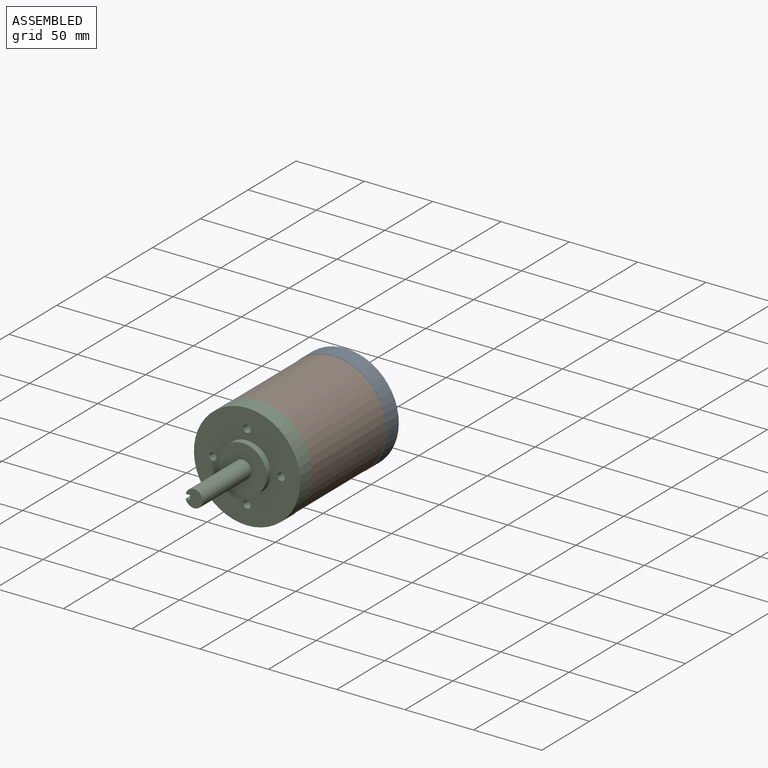
[diagram: assembled view]
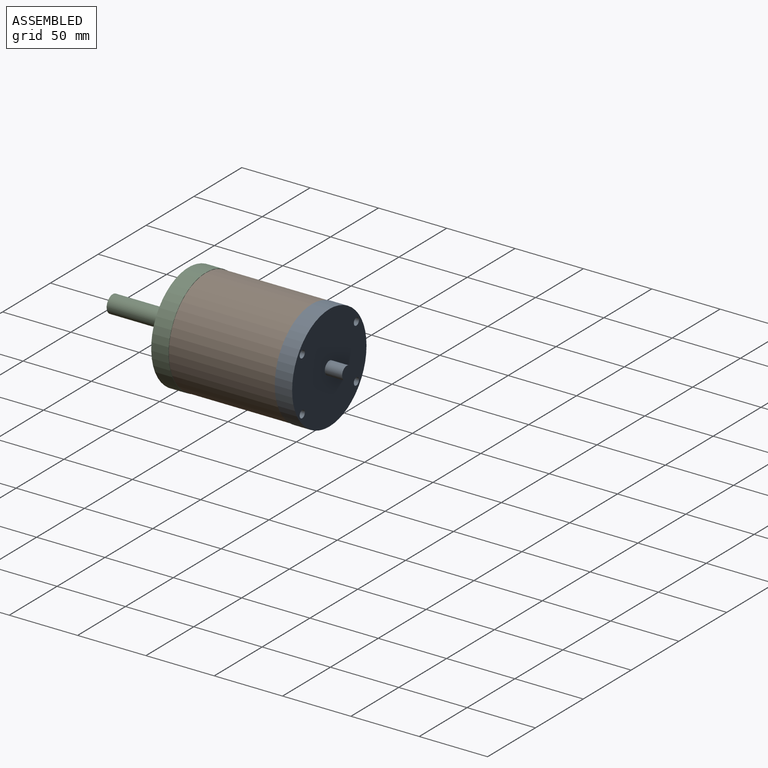
[diagram: assembled view, second angle]
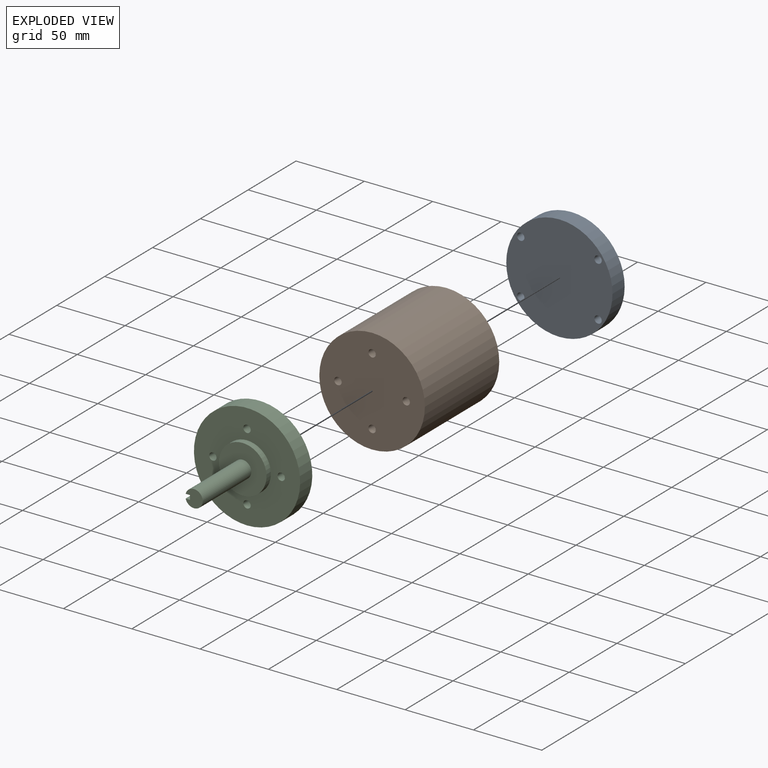
[diagram: exploded view]
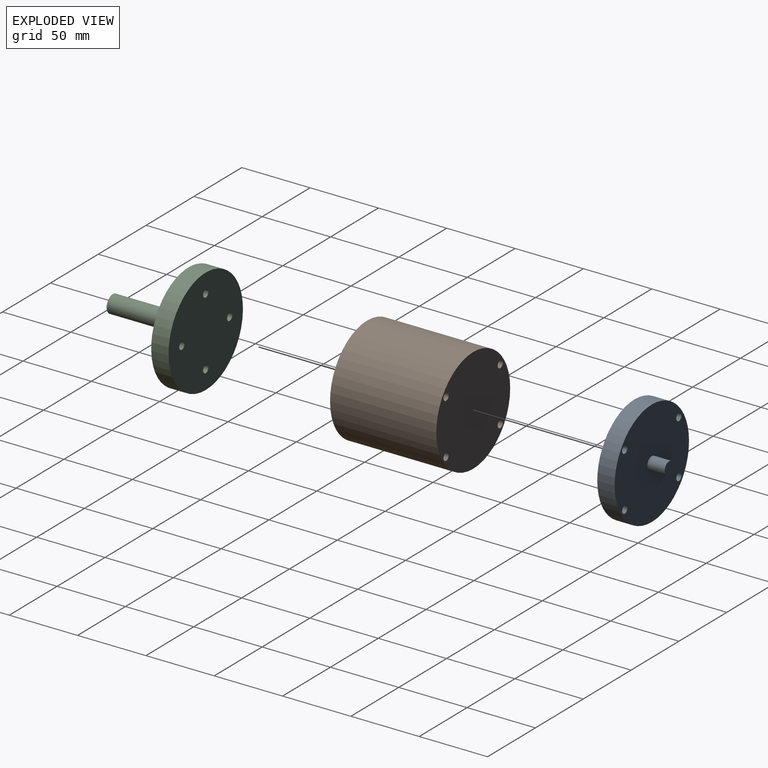
[diagram: exploded view, second angle]
ASSEMBLY  parts=3 mates=2
PART A: 9 faces, bbox 77.7x25.4x77.7 mm
  f0: cylinder r=38.86mm len=77.72mm, axis (0,-1,0), area 3101mm2, adj f1,f2
  f1: plane 77.72x77.72mm, normal (0,1,0), area 4581.7mm2, adj f0,f3,f5,f6,f7,f8
  f2: plane 77.72x77.72mm, normal (0,-1,0), area 4653mm2, adj f0,f5,f6,f7,f8
  f3: cylinder r=4.76mm len=12.7mm, axis (0,-1,0), area 380mm2, adj f1,f4
  f4: plane 9.53x9.53mm, normal (0,1,0), area 71.3mm2, adj f3
  f5: cylinder r=2.7mm len=12.7mm, axis (0,1,0), area 215.5mm2, adj f1,f2
  f6: cylinder r=2.7mm len=12.7mm, axis (0,1,0), area 215.5mm2, adj f1,f2
  f7: cylinder r=2.7mm len=12.7mm, axis (0,1,0), area 215.5mm2, adj f1,f2
  f8: cylinder r=2.7mm len=12.7mm, axis (0,1,0), area 215.5mm2, adj f1,f2
PART B: 19 faces, bbox 77.2x77.7x77.2 mm
  f0: cylinder r=38.62mm len=77.72mm, axis (0,1,0), area 18861.2mm2, adj f1,f2
  f1: plane 77.24x77.24mm, normal (0,-1,0), area 4594.6mm2, adj f0,f4,f6,f8,f10
  f2: plane 77.24x77.24mm, normal (0,1,0), area 4594.6mm2, adj f0,f11,f13,f15,f17
  f3: cone r=0mm half-angle=59deg, axis (0,-1,0), area 26.7mm2, adj f4
  f4: cylinder r=2.7mm len=17.3mm, axis (0,-1,0), area 293.5mm2, adj f1,f3
  f5: cone r=0mm half-angle=59deg, axis (0,-1,0), area 26.7mm2, adj f6
  f6: cylinder r=2.7mm len=17.3mm, axis (0,-1,0), area 293.5mm2, adj f1,f5
  f7: cone r=0mm half-angle=59deg, axis (0,-1,0), area 26.7mm2, adj f8
  f8: cylinder r=2.7mm len=17.3mm, axis (0,-1,0), area 293.5mm2, adj f1,f7
  f9: cone r=0mm half-angle=59deg, axis (0,-1,0), area 26.7mm2, adj f10
  f10: cylinder r=2.7mm len=17.3mm, axis (0,-1,0), area 293.5mm2, adj f1,f9
  f11: cylinder r=2.7mm len=17.3mm, axis (0,1,0), area 293.5mm2, adj f2,f12
  f12: cone r=0mm half-angle=59deg, axis (0,1,0), area 26.7mm2, adj f11
  f13: cylinder r=2.7mm len=17.3mm, axis (0,1,0), area 293.5mm2, adj f2,f14
  f14: cone r=0mm half-angle=59deg, axis (0,1,0), area 26.7mm2, adj f13
  f15: cylinder r=2.7mm len=17.3mm, axis (0,1,0), area 293.5mm2, adj f2,f16
  f16: cone r=0mm half-angle=59deg, axis (0,1,0), area 26.7mm2, adj f15
  f17: cylinder r=2.7mm len=17.3mm, axis (0,1,0), area 293.5mm2, adj f2,f18
  f18: cone r=0mm half-angle=59deg, axis (0,1,0), area 26.7mm2, adj f17
PART C: 15 faces, bbox 77.7x68.1x77.7 mm
  f0: cylinder r=38.86mm len=77.72mm, axis (0,1,0), area 3101mm2, adj f1,f2
  f1: plane 77.72x77.72mm, normal (0,-1,0), area 3696.4mm2, adj f0,f3,f7,f8,f9,f10
  f2: plane 77.72x77.72mm, normal (0,1,0), area 4653mm2, adj f0,f7,f8,f9,f10
  f3: cylinder r=17.45mm len=34.9mm, axis (0,1,0), area 501.3mm2, adj f1,f4
  f4: plane 34.9x34.9mm, normal (0,-1,0), area 829.9mm2, adj f3,f5
  f5: cylinder r=6.35mm len=50.8mm, axis (0,1,0), area 1947.2mm2, adj f4,f6,f11,f13,f14
  f6: plane 12.7x12.5mm, normal (0,-1,0), area 116.3mm2, adj f5,f11,f12,f13
  f7: cylinder r=2.7mm len=12.7mm, axis (0,-1,0), area 215.5mm2, adj f1,f2
  f8: cylinder r=2.7mm len=12.7mm, axis (0,-1,0), area 215.5mm2, adj f1,f2
  f9: cylinder r=2.7mm len=12.7mm, axis (0,-1,0), area 215.5mm2, adj f1,f2
  f10: cylinder r=2.7mm len=12.7mm, axis (0,-1,0), area 215.5mm2, adj f1,f2
  f11: plane 25x3.18mm, normal (0,0,1), area 79.4mm2, adj f5,f6,f12,f14
  f12: plane 25x3.15mm, normal (-1,0,0), area 78.8mm2, adj f6,f11,f13,f14
  f13: plane 25x3.18mm, normal (0,0,-1), area 79.4mm2, adj f5,f6,f12,f14
  f14: plane 3.37x3.15mm, normal (0,-1,0), area 10.4mm2, adj f5,f11,f12,f13
PLACE A t=(-73.78,-5.19,-2.18)mm
PLACE B t=(-73.78,-5.19,-2.18)mm
PLACE C t=(-73.78,-5.19,-2.18)mm
MATE fastened A.f0 <-> B.f0  axis (0,-1,0) through (-73.78,-5.19,-2.18)mm
MATE fastened C.f0 <-> B.f0  axis (0,1,0) through (-73.78,-82.91,-2.18)mm
